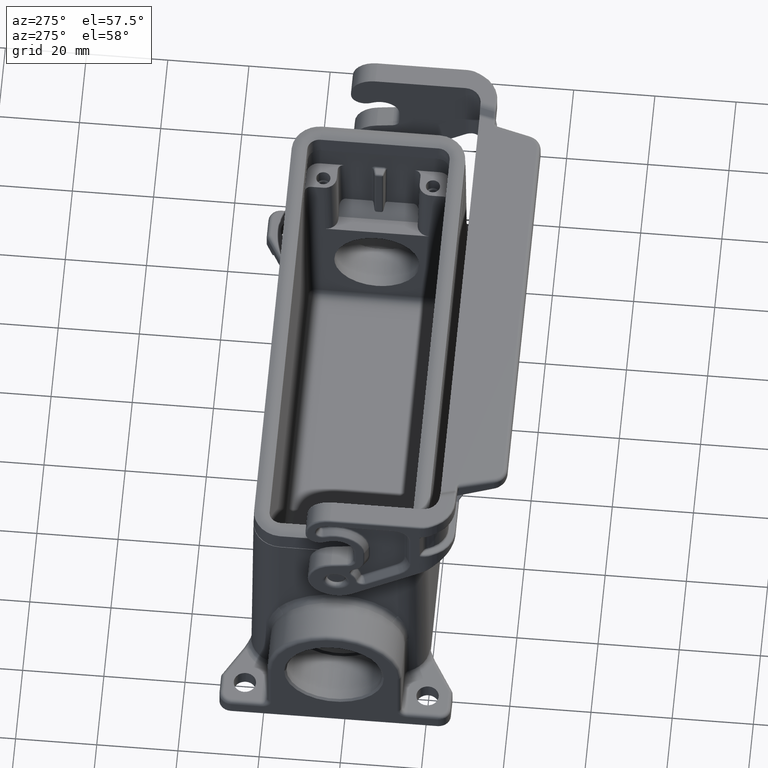
[diagram: clean part render]
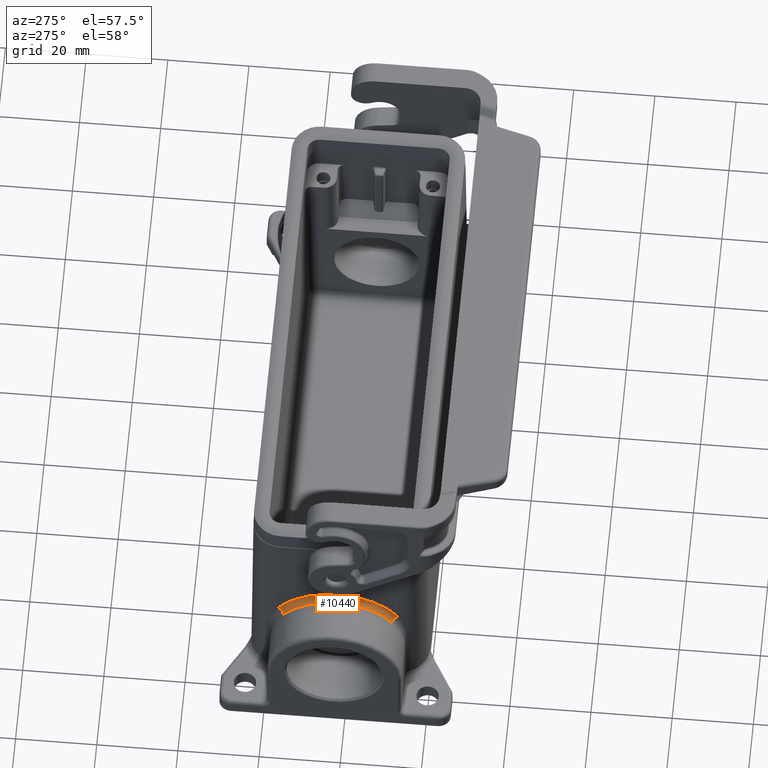
[diagram: same view with one face highlighted and labeled with its STEP entity id]
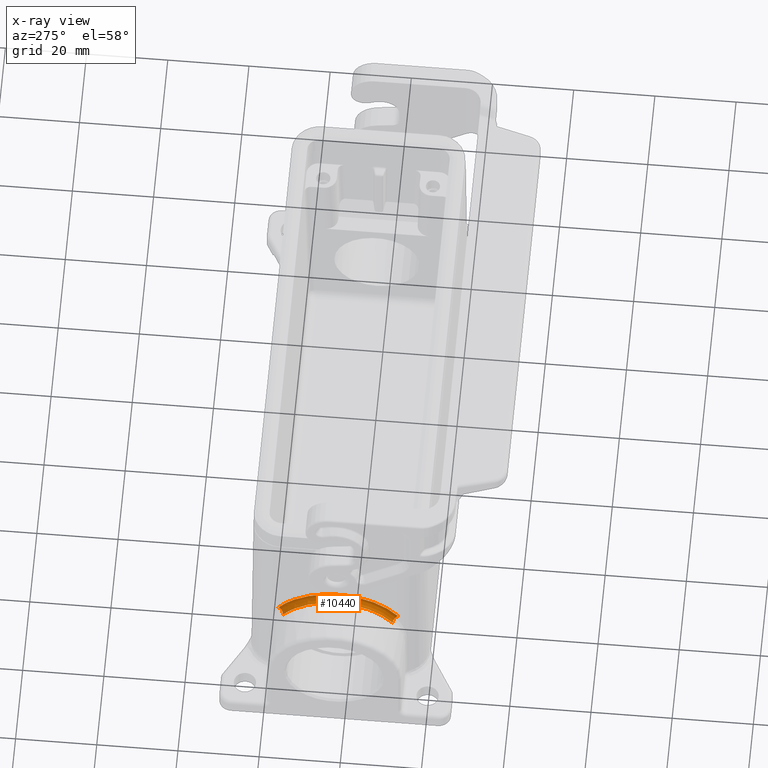
[diagram: x-ray of the same camera — body ghosted, the highlighted face saturated]
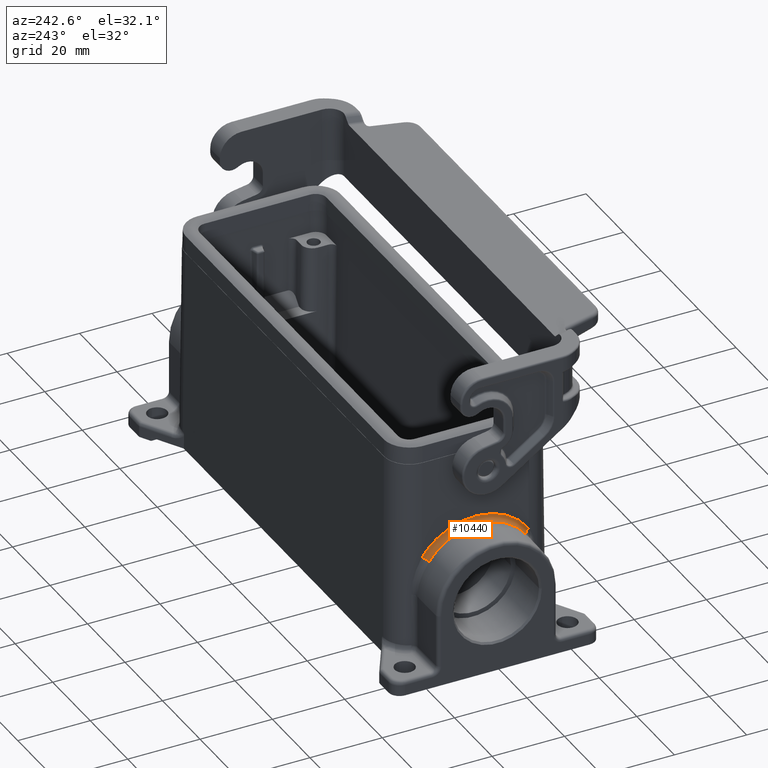
[diagram: same view with one face highlighted and labeled with its STEP entity id]
A machine part, auxiliary view. The second image highlights one B-rep face of the part: STEP entity #10440.
The next image is the same camera in x-ray: the body ghosted, the highlighted face saturated — about 0% of this face is hidden behind the body in this view.
A second angle (auxiliary view) of the same face is appended — the face is thin or edge-on in the first view.
In plain terms, the highlighted face is a freeform B-spline surface patch.
Its self-contained STEP definition (entity closure, byte-faithful):
#4210=CARTESIAN_POINT('',(14.7374480780062,60.2371815394552,
30.3216875582114));
#4220=VERTEX_POINT('',#4210);
#8830=CARTESIAN_POINT('',(-14.7374480780062,60.2371815394552,
30.3216875582114));
#8840=CARTESIAN_POINT('',(-14.6951971206962,60.2366557447875,
30.3819376594239));
#8850=CARTESIAN_POINT('',(-14.6525773039031,60.2361322177266,
30.4419279186401));
#8860=CARTESIAN_POINT('',(-13.892444281941,60.2269152664521,
31.4980859234905));
#8870=CARTESIAN_POINT('',(-13.0748343045402,60.2188777408017,
32.4190951381506));
#8880=CARTESIAN_POINT('',(-11.0737696810454,60.2028549542033,
34.2551246257774));
#8890=CARTESIAN_POINT('',(-9.85798856481249,60.1953015302404,
35.1206612815329));
#8900=CARTESIAN_POINT('',(-7.24136871301094,60.1829762835234,
36.5329946653474));
#8910=CARTESIAN_POINT('',(-5.85060732945258,60.1782519069138,
37.0743546037471));
#8920=CARTESIAN_POINT('',(-2.9677378730566,60.1718956042248,
37.8027147486926));
#8930=CARTESIAN_POINT('',(-1.48673162788218,60.1702881549019,
37.9869101967524));
#8940=CARTESIAN_POINT('',(1.48673162787281,60.1702881549019,
37.9869101967524));
#8950=CARTESIAN_POINT('',(2.96773787303784,60.1718956042247,
37.8027147486949));
#8960=CARTESIAN_POINT('',(5.85060732941679,60.1782519069137,
37.0743546037585));
#8970=CARTESIAN_POINT('',(7.24136871296737,60.1829762835232,
36.5329946653656));
#8980=CARTESIAN_POINT('',(9.85798856476507,60.1953015302401,
35.1206612815637));
#8990=CARTESIAN_POINT('',(11.0737696810006,60.2028549542029,
34.2551246258123));
#9000=CARTESIAN_POINT('',(13.074834304515,60.2188777408015,
32.4190951381789));
#9010=CARTESIAN_POINT('',(13.8924442819298,60.226915266452,
31.498085923506));
#9020=CARTESIAN_POINT('',(14.6525773039031,60.2361322177266,
30.4419279186401));
#9030=CARTESIAN_POINT('',(14.6951971206962,60.2366557447875,
30.3819376594239));
#9040=CARTESIAN_POINT('',(14.7374480780062,60.2371815394552,
30.3216875582114));
#9050=CARTESIAN_POINT('',(-14.0208190769757,60.2415657490958,
29.8193068936098));
#9060=CARTESIAN_POINT('',(-13.9808798786817,60.2410684002723,
29.8762974239108));
#9070=CARTESIAN_POINT('',(-13.9400740493112,60.2405668181109,
29.933773045967));
#9080=CARTESIAN_POINT('',(-13.2170379544232,60.2317952782598,
30.9388919572791));
#9090=CARTESIAN_POINT('',(-12.4400988945991,60.2241527417268,
31.8146399027122));
#9100=CARTESIAN_POINT('',(-10.5355017126253,60.2088956269685,
33.562932087735));
#9110=CARTESIAN_POINT('',(-9.38023767644557,60.2017149992917,
34.3857505194976));
#9120=CARTESIAN_POINT('',(-6.88936725062672,60.1899773628281,
35.7307504375666));
#9130=CARTESIAN_POINT('',(-5.56764481539252,60.1854857689046,
36.2454361229962));
#9140=CARTESIAN_POINT('',(-2.82305009891794,60.1794321349399,
36.9391138673851));
#9150=CARTESIAN_POINT('',(-1.41546683092698,60.1779038211705,
37.1142412791933));
#9160=CARTESIAN_POINT('',(1.41546683091805,60.1779038211705,
37.1142412791933));
#9170=CARTESIAN_POINT('',(2.82305009890012,60.1794321349399,
36.9391138673873));
#9180=CARTESIAN_POINT('',(5.56764481535847,60.1854857689045,
36.2454361230071));
#9190=CARTESIAN_POINT('',(6.88936725058527,60.189977362828,
35.730750437584));
#9200=CARTESIAN_POINT('',(9.38023767640044,60.2017149992914,
34.385750519527));
#9210=CARTESIAN_POINT('',(10.5355017125827,60.2088956269682,
33.5629320877682));
#9220=CARTESIAN_POINT('',(12.4400988945751,60.2241527417266,
31.8146399027392));
#9230=CARTESIAN_POINT('',(13.2170379544126,60.2317952782597,
30.9388919572939));
#9240=CARTESIAN_POINT('',(13.9400740493112,60.2405668181109,
29.933773045967));
#9250=CARTESIAN_POINT('',(13.9808798786817,60.2410684002723,
29.8762974239107));
#9260=CARTESIAN_POINT('',(14.0208190769757,60.2415657490958,
29.8193068936098));
#9270=CARTESIAN_POINT('',(-13.5129192886119,60.8619540379525,
29.4684239140414));
#9280=CARTESIAN_POINT('',(-13.4741990093333,60.861448578719,
29.5236848363868));
#9290=CARTESIAN_POINT('',(-13.4351421710505,60.8609448490341,
29.5787028457142));
#9300=CARTESIAN_POINT('',(-12.7385263655005,60.8520805976195,
30.5473714218543));
#9310=CARTESIAN_POINT('',(-11.9890993374348,60.8443514917556,
31.3921732808248));
#9320=CARTESIAN_POINT('',(-10.1547145974213,60.8289417467464,
33.0763256707753));
#9330=CARTESIAN_POINT('',(-9.04000134437429,60.8216768521001,
33.8703698575759));
#9340=CARTESIAN_POINT('',(-6.64078075299115,60.8098224658427,
35.166040475487));
#9350=CARTESIAN_POINT('',(-5.36539519950632,60.8052782136831,
35.6627409389151));
#9360=CARTESIAN_POINT('',(-2.72170573578628,60.7991644271463,
36.3309898877165));
#9370=CARTESIAN_POINT('',(-1.36344049509171,60.7976182049643,
36.499999998707));
#9380=CARTESIAN_POINT('',(1.36344049508311,60.7976182049643,
36.499999998707));
#9390=CARTESIAN_POINT('',(2.72170573576908,60.7991644271463,
36.3309898877186));
#9400=CARTESIAN_POINT('',(5.3653951994735,60.805278213683,
35.6627409389256));
#9410=CARTESIAN_POINT('',(6.64078075295119,60.8098224658425,
35.1660404755037));
#9420=CARTESIAN_POINT('',(9.04000134433081,60.8216768520998,
33.8703698576042));
#9430=CARTESIAN_POINT('',(10.1547145973802,60.8289417467461,
33.0763256708073));
#9440=CARTESIAN_POINT('',(11.9890993374117,60.8443514917554,
31.3921732808508));
#9450=CARTESIAN_POINT('',(12.7385263654903,60.8520805976193,
30.5473714218685));
#9460=CARTESIAN_POINT('',(13.4351421710505,60.860944849034,
29.5787028457143));
#9470=CARTESIAN_POINT('',(13.4741990093333,60.861448578719,
29.5236848363867));
#9480=CARTESIAN_POINT('',(13.5129192886119,60.8619540379525,
29.4684239140414));
#9490=CARTESIAN_POINT('',(-13.5093283438704,61.7371246282077,
29.4735446216028));
#9500=CARTESIAN_POINT('',(-13.4705980029545,61.7365988294917,
29.5287743073437));
#9510=CARTESIAN_POINT('',(-13.4315292124167,61.7360751025671,
29.5837662193947));
#9520=CARTESIAN_POINT('',(-12.7347406290248,61.7268581515654,
30.5519110285239));
#9530=CARTESIAN_POINT('',(-11.9852647908012,61.7188206254996,
31.3961695189356));
#9540=CARTESIAN_POINT('',(-10.1509555268786,61.7027978386765,
33.0791965728581));
#9550=CARTESIAN_POINT('',(-9.03648962531896,61.6952444153895,
33.87260510296));
#9560=CARTESIAN_POINT('',(-6.63792121266557,61.6829191675668,
35.1672441542616));
#9570=CARTESIAN_POINT('',(-5.36305690875458,61.6781947919673,
35.6634906583854));
#9580=CARTESIAN_POINT('',(-2.72042619354561,61.6718384883638,
36.3311542206381));
#9590=CARTESIAN_POINT('',(-1.36283754836767,61.6702310394981,36.5));
#9600=CARTESIAN_POINT('',(1.36283754835908,61.6702310394981,36.5));
#9610=CARTESIAN_POINT('',(2.72042619352842,61.6718384883638,
36.3311542206403));
#9620=CARTESIAN_POINT('',(5.36305690872177,61.6781947919671,
35.6634906583959));
#9630=CARTESIAN_POINT('',(6.63792121262563,61.6829191675667,
35.1672441542783));
#9640=CARTESIAN_POINT('',(9.03648962527549,61.6952444153892,
33.8726051029882));
#9650=CARTESIAN_POINT('',(10.1509555268375,61.7027978386762,
33.07919657289));
#9660=CARTESIAN_POINT('',(11.9852647907781,61.7188206254994,
31.3961695189615));
#9670=CARTESIAN_POINT('',(12.7347406290146,61.7268581515653,
30.5519110285381));
#9680=CARTESIAN_POINT('',(13.4315292124167,61.7360751025671,
29.5837662193948));
#9690=CARTESIAN_POINT('',(13.4705980029545,61.7365988294917,
29.5287743073437));
#9700=CARTESIAN_POINT('',(13.5093283438704,61.7371246282077,
29.4735446216029));
#9710=(BOUNDED_SURFACE() B_SPLINE_SURFACE(3,3,((#8830,#9050,#9270,#9490)
,(#8840,#9060,#9280,#9500),(#8850,#9070,#9290,#9510),(#8860,#9080,#9300,
#9520),(#8870,#9090,#9310,#9530),(#8880,#9100,#9320,#9540),(#8890,#9110,
#9330,#9550),(#8900,#9120,#9340,#9560),(#8910,#9130,#9350,#9570),(#8920,
#9140,#9360,#9580),(#8930,#9150,#9370,#9590),(#8940,#9160,#9380,#9600),(
#8950,#9170,#9390,#9610),(#8960,#9180,#9400,#9620),(#8970,#9190,#9410,
#9630),(#8980,#9200,#9420,#9640),(#8990,#9210,#9430,#9650),(#9000,#9220,
#9440,#9660),(#9010,#9230,#9450,#9670),(#9020,#9240,#9460,#9680),(#9030,
#9250,#9470,#9690),(#9040,#9260,#9480,#9700)),.UNSPECIFIED.,.F.,.F.,.F.)
 B_SPLINE_SURFACE_WITH_KNOTS((4,2,2,2,2,2,2,2,2,2,4),(4,4),(0.,
0.211535128211734,3.74055452878898,8.00948390321335,12.2783858909288,
16.5472853974156,20.8161849038754,25.0850868915633,29.3540162659846,
32.8830356666106,33.0945707948218),(0.,1.),.UNSPECIFIED.) 
GEOMETRIC_REPRESENTATION_ITEM() RATIONAL_B_SPLINE_SURFACE(((1.,
0.805917334163331,0.805917334163331,1.),(1.,0.805924365571367,
0.805924365571367,1.),(1.,0.805931050981536,0.805931050981536,1.),(1.,
0.806050580869661,0.806050580869661,1.),(1.,0.806156065334729,
0.806156065334729,1.),(1.,0.806364735299848,0.806364735299848,1.),(1.,
0.80646329781886,0.80646329781886,1.),(1.,0.806623953809472,
0.806623953809472,1.),(1.,0.806685568852814,0.806685568852814,1.),(1.,
0.806768389464691,0.806768389464691,1.),(1.,0.806789348109885,
0.806789348109885,1.),(1.,0.806789348109882,0.806789348109882,1.),(1.,
0.806768389464697,0.806768389464697,1.),(1.,0.806685568852816,
0.806685568852816,1.),(1.,0.806623953809475,0.806623953809475,1.),(1.,
0.806463297818867,0.806463297818867,1.),(1.,0.806364735299851,
0.806364735299851,1.),(1.,0.806156065334731,0.806156065334731,1.),(1.,
0.806050580869664,0.806050580869664,1.),(1.,0.805931050981536,
0.805931050981536,1.),(1.,0.805924365571369,0.805924365571369,1.),(1.,
0.805917334163331,0.805917334163331,1.))) REPRESENTATION_ITEM('') 
SURFACE());
#9720=CARTESIAN_POINT('',(-13.5093283438704,61.7371246282077,
29.4735446216028));
#9730=CARTESIAN_POINT('',(-13.5129192886119,60.8619540379525,
29.4684239140414));
#9740=CARTESIAN_POINT('',(-14.0208190769757,60.2415657490958,
29.8193068936098));
#9750=CARTESIAN_POINT('',(-14.7374480780062,60.2371815394552,
30.3216875582114));
#9760=(BOUNDED_CURVE() B_SPLINE_CURVE(3,(#9720,#9730,#9740,#9750),
.UNSPECIFIED.,.F.,.F.) B_SPLINE_CURVE_WITH_KNOTS((4,4),(0.,1.),
.UNSPECIFIED.) CURVE() GEOMETRIC_REPRESENTATION_ITEM() 
RATIONAL_B_SPLINE_CURVE((1.,0.805917334163334,0.805917334163334,1.)) 
REPRESENTATION_ITEM(''));
#9770=CARTESIAN_POINT('',(-13.5093283438704,61.7371246282077,
29.4735446216028));
#9780=VERTEX_POINT('',#9770);
#9790=CARTESIAN_POINT('',(-14.7374480780062,60.2371815394552,
30.3216875582114));
#9800=VERTEX_POINT('',#9790);
#9810=EDGE_CURVE('',#9780,#9800,#9760,.T.);
#9820=ORIENTED_EDGE('',*,*,#9810,.T.);
#9830=CARTESIAN_POINT('',(-13.5093283438704,61.7371246282077,
29.4735446216028));
#9840=CARTESIAN_POINT('',(-13.4705980029545,61.7365988294917,
29.5287743073437));
#9850=CARTESIAN_POINT('',(-13.4315292124167,61.7360751025671,
29.5837662193947));
#9860=CARTESIAN_POINT('',(-12.7347406290248,61.7268581515654,
30.5519110285239));
#9870=CARTESIAN_POINT('',(-11.9852647908012,61.7188206254996,
31.3961695189356));
#9880=CARTESIAN_POINT('',(-10.1509555268786,61.7027978386765,
33.0791965728581));
#9890=CARTESIAN_POINT('',(-9.03648962531896,61.6952444153895,
33.87260510296));
#9900=CARTESIAN_POINT('',(-6.63792121266557,61.6829191675668,
35.1672441542616));
#9910=CARTESIAN_POINT('',(-5.36305690875458,61.6781947919673,
35.6634906583854));
#9920=CARTESIAN_POINT('',(-2.72042619354561,61.6718384883638,
36.3311542206381));
#9930=CARTESIAN_POINT('',(-1.36283754836767,61.6702310394981,36.5));
#9940=CARTESIAN_POINT('',(1.36283754835908,61.6702310394981,36.5));
#9950=CARTESIAN_POINT('',(2.72042619352842,61.6718384883638,
36.3311542206403));
#9960=CARTESIAN_POINT('',(5.36305690872177,61.6781947919671,
35.6634906583959));
#9970=CARTESIAN_POINT('',(6.63792121262563,61.6829191675667,
35.1672441542783));
#9980=CARTESIAN_POINT('',(9.03648962527549,61.6952444153892,
33.8726051029882));
#9990=CARTESIAN_POINT('',(10.1509555268375,61.7027978386762,
33.07919657289));
#10000=CARTESIAN_POINT('',(11.9852647907781,61.7188206254994,
31.3961695189615));
#10010=CARTESIAN_POINT('',(12.7347406290146,61.7268581515653,
30.5519110285381));
#10020=CARTESIAN_POINT('',(13.4315292124167,61.7360751025671,
29.5837662193948));
#10030=CARTESIAN_POINT('',(13.4705980029545,61.7365988294917,
29.5287743073437));
#10040=CARTESIAN_POINT('',(13.5093283438704,61.7371246282077,
29.4735446216029));
#10050=B_SPLINE_CURVE_WITH_KNOTS('',3,(#9830,#9840,#9850,#9860,#9870,
#9880,#9890,#9900,#9910,#9920,#9930,#9940,#9950,#9960,#9970,#9980,#9990,
#10000,#10010,#10020,#10030,#10040),.UNSPECIFIED.,.F.,.F.,(4,2,2,2,2,2,2
,2,2,2,4),(0.,0.211535128211734,3.74055452878898,8.00948390321335,
12.2783858909288,16.5472853974156,20.8161849038754,25.0850868915633,
29.3540162659846,32.8830356666106,33.0945707948218),.UNSPECIFIED.);
#10060=CARTESIAN_POINT('',(13.5093283438704,61.7371246282077,
29.4735446216029));
#10070=VERTEX_POINT('',#10060);
#10080=EDGE_CURVE('',#9780,#10070,#10050,.T.);
#10090=ORIENTED_EDGE('',*,*,#10080,.F.);
#10100=CARTESIAN_POINT('',(14.7374480780062,60.2371815394552,
30.3216875582114));
#10110=CARTESIAN_POINT('',(14.0208190769757,60.2415657490958,
29.8193068936098));
#10120=CARTESIAN_POINT('',(13.5129192886119,60.8619540379525,
29.4684239140414));
#10130=CARTESIAN_POINT('',(13.5093283438704,61.7371246282077,
29.4735446216029));
#10140=(BOUNDED_CURVE() B_SPLINE_CURVE(3,(#10100,#10110,#10120,#10130),
.UNSPECIFIED.,.F.,.F.) B_SPLINE_CURVE_WITH_KNOTS((4,4),(0.,1.),
.UNSPECIFIED.) CURVE() GEOMETRIC_REPRESENTATION_ITEM() 
RATIONAL_B_SPLINE_CURVE((1.,0.805917334163333,0.805917334163333,1.)) 
REPRESENTATION_ITEM(''));
#10150=EDGE_CURVE('',#4220,#10070,#10140,.T.);
#10160=ORIENTED_EDGE('',*,*,#10150,.T.);
#10170=CARTESIAN_POINT('',(-14.7374480780062,60.2371815394552,
30.3216875582114));
#10180=CARTESIAN_POINT('',(-14.6951971206962,60.2366557447875,
30.3819376594239));
#10190=CARTESIAN_POINT('',(-14.6525773039031,60.2361322177266,
30.4419279186401));
#10200=CARTESIAN_POINT('',(-13.892444281941,60.2269152664521,
31.4980859234905));
#10210=CARTESIAN_POINT('',(-13.0748343045402,60.2188777408017,
32.4190951381506));
#10220=CARTESIAN_POINT('',(-11.0737696810454,60.2028549542033,
34.2551246257774));
#10230=CARTESIAN_POINT('',(-9.85798856481249,60.1953015302404,
35.1206612815329));
#10240=CARTESIAN_POINT('',(-7.24136871301094,60.1829762835234,
36.5329946653474));
#10250=CARTESIAN_POINT('',(-5.85060732945258,60.1782519069138,
37.0743546037471));
#10260=CARTESIAN_POINT('',(-2.9677378730566,60.1718956042248,
37.8027147486926));
#10270=CARTESIAN_POINT('',(-1.48673162788218,60.1702881549019,
37.9869101967524));
#10280=CARTESIAN_POINT('',(1.48673162787281,60.1702881549019,
37.9869101967524));
#10290=CARTESIAN_POINT('',(2.96773787303784,60.1718956042247,
37.8027147486949));
#10300=CARTESIAN_POINT('',(5.85060732941679,60.1782519069137,
37.0743546037585));
#10310=CARTESIAN_POINT('',(7.24136871296737,60.1829762835232,
36.5329946653656));
#10320=CARTESIAN_POINT('',(9.85798856476507,60.1953015302401,
35.1206612815637));
#10330=CARTESIAN_POINT('',(11.0737696810006,60.2028549542029,
34.2551246258123));
#10340=CARTESIAN_POINT('',(13.074834304515,60.2188777408015,
32.4190951381789));
#10350=CARTESIAN_POINT('',(13.8924442819298,60.226915266452,
31.498085923506));
#10360=CARTESIAN_POINT('',(14.6525773039031,60.2361322177266,
30.4419279186401));
#10370=CARTESIAN_POINT('',(14.6951971206962,60.2366557447875,
30.3819376594239));
#10380=CARTESIAN_POINT('',(14.7374480780062,60.2371815394552,
30.3216875582114));
#10390=B_SPLINE_CURVE_WITH_KNOTS('',3,(#10170,#10180,#10190,#10200,
#10210,#10220,#10230,#10240,#10250,#10260,#10270,#10280,#10290,#10300,
#10310,#10320,#10330,#10340,#10350,#10360,#10370,#10380),.UNSPECIFIED.,
.F.,.F.,(4,2,2,2,2,2,2,2,2,2,4),(0.,0.211535128211734,3.74055452878898,
8.00948390321335,12.2783858909288,16.5472853974156,20.8161849038754,
25.0850868915633,29.3540162659846,32.8830356666106,33.0945707948218),
.UNSPECIFIED.);
#10400=EDGE_CURVE('',#9800,#4220,#10390,.T.);
#10410=ORIENTED_EDGE('',*,*,#10400,.T.);
#10420=EDGE_LOOP('',(#10410,#10160,#10090,#9820));
#10430=FACE_OUTER_BOUND('',#10420,.T.);
#10440=ADVANCED_FACE('',(#10430),#9710,.T.);